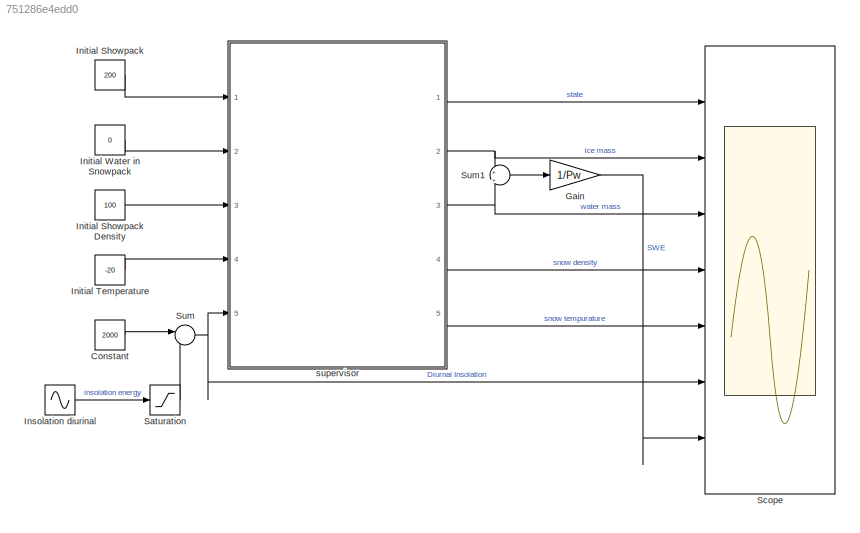
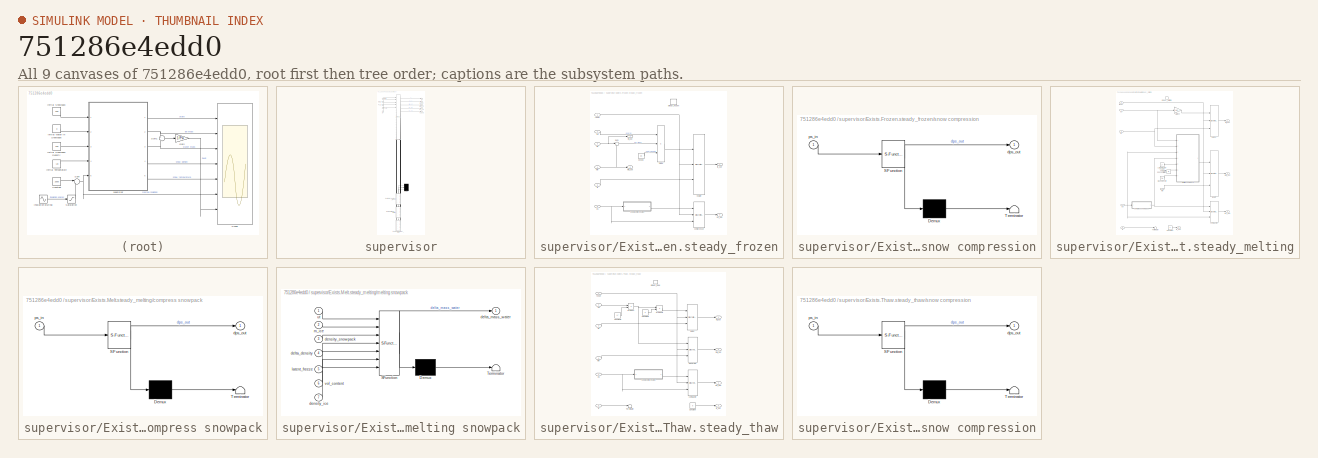
[diagram: thumbnail index - all 9 canvases of the model, root first then tree order]
MODEL slx_751286e4edd0
KIND model
WORKSPACE source: MAT-file member
WORKSPACE As = 450
BLOCK [Constant] Constant
  Value = 2000
BLOCK [Gain] Gain
  Gain = 1/Pw
  OutDataTypeStr = Inherit: Inherit via internal rule
  ParamDataTypeStr = Inherit: Inherit via internal rule
  SaturateOnIntegerOverflow = off
BLOCK [Constant] Initial Showpack
  Value = 200
BLOCK [Constant] Initial Showpack Density
  Value = 100
BLOCK [Constant] Initial Temperature
  Value = -20
BLOCK [Constant] Initial Water in Snowpack
  Value = 0
BLOCK [Sin] Insolation diurinal
  Amplitude = 30000
  Frequency = 2*pi
  Ports = [0, 1]
  SampleTime = 1/120
BLOCK [Saturate] Saturation
  InputPortMap = u0
  LowerLimit = 0.0
  Ports = [1, 1]
  UpperLimit = inf
BLOCK [Scope] Scope
  DataFormat = StructureWithTime
  Floating = off
  NumInputPorts = 7
  Ports = [7]
  SampleTime = 0
  ShowLegends = off
  YMax = 4~210~50~200~5~50000~0.3
  YMin = 0~0~0~-1~-25~-20000~0
BLOCK [Sum] Sum
  IconShape = round
  InputSameDT = off
  Inputs = |-+
  OutDataTypeStr = Inherit: Inherit via internal rule
  Ports = [2, 1]
  SaturateOnIntegerOverflow = off
BLOCK [Sum] Sum1
  IconShape = round
  InputSameDT = off
  Inputs = +|+
  OutDataTypeStr = Inherit: Inherit via internal rule
  Ports = [2, 1]
  SaturateOnIntegerOverflow = off
BLOCK [SubSystem] supervisor
  ErrorFcn = Stateflow.Translate.translate
  PermitHierarchicalResolution = ExplicitOnly
  Ports = [5, 5]
  RequestExecContextInheritance = off
  SFBlockType = Chart
  TreatAsAtomicUnit = on
BLOCK [Demux] supervisor/ Demux 
  Outputs = 3
  Ports = [1, 3]
BLOCK [S-Function] supervisor/ SFunction 
  EnableBusSupport = on
  FunctionName = sf_sfun
  PortCounts = [17 24]
  Ports = [17, 24]
  Tag = Stateflow S-Function snowpack_water 3
BLOCK [SubSystem] supervisor/Exists.Frozen.steady_frozen
  CheckFcnCallInpInsideContextMsg = on
  Ports = [6, 4, 0, 1]
  PreDeleteFcn = Stateflow.SLINSF.SimulinkMan.removePreDeleteFcn
  RequestExecContextInheritance = off
  UndoDeleteFcn = Stateflow.SLINSF.SimulinkMan.restorePreDeleteFcn
BLOCK [Constant] supervisor/Exists.Frozen.steady_frozen/C snow
  Value = Cs
BLOCK [Product] supervisor/Exists.Frozen.steady_frozen/Divide
  InputSameDT = off
  Inputs = *//
  OutDataTypeStr = Inherit: Inherit via internal rule
  Ports = [3, 1]
  RndMeth = Floor
  SaturateOnIntegerOverflow = off
BLOCK [Sum] supervisor/Exists.Frozen.steady_frozen/Sum
  IconShape = round
  InputSameDT = off
  Inputs = |++
  OutDataTypeStr = Inherit: Inherit via internal rule
  Ports = [2, 1]
  SaturateOnIntegerOverflow = off
BLOCK [DiscreteIntegrator] supervisor/Exists.Frozen.steady_frozen/compressor
  ExternalReset = rising
  ICPrevOutput = DiscIntNeverNeededParam
  ICPrevScaledInput = DiscIntNeverNeededParam
  InitialConditionSource = external
  Ports = [3, 1]
  SampleTime = -1
BLOCK [DiscreteIntegrator] supervisor/Exists.Frozen.steady_frozen/heater
  ExternalReset = rising
  ICPrevOutput = DiscIntNeverNeededParam
  ICPrevScaledInput = DiscIntNeverNeededParam
  InitialConditionSource = external
  Ports = [3, 1]
  SampleTime = -1
BLOCK [Inport] supervisor/Exists.Frozen.steady_frozen/mi
  IconDisplay = Port number
  OutDataTypeStr = double
  Port = 3
  PortDimensions = 1
  SignalType = real
  VarSizeSig = No
BLOCK [Outport] supervisor/Exists.Frozen.steady_frozen/mi_out
  IconDisplay = Port number
BLOCK [Inport] supervisor/Exists.Frozen.steady_frozen/mw
  IconDisplay = Port number
  OutDataTypeStr = double
  Port = 4
  PortDimensions = 1
  SignalType = real
  VarSizeSig = No
BLOCK [Outport] supervisor/Exists.Frozen.steady_frozen/mw_out
  IconDisplay = Port number
  Port = 2
BLOCK [Inport] supervisor/Exists.Frozen.steady_frozen/ps
  IconDisplay = Port number
  OutDataTypeStr = double
  Port = 5
  PortDimensions = 1
  SignalType = real
  VarSizeSig = No
BLOCK [Outport] supervisor/Exists.Frozen.steady_frozen/ps_out
  IconDisplay = Port number
  Port = 3
BLOCK [Inport] supervisor/Exists.Frozen.steady_frozen/reset
  IconDisplay = Port number
  OutDataTypeStr = double
  PortDimensions = 1
  SignalType = real
  VarSizeSig = No
BLOCK [SubSystem] supervisor/Exists.Frozen.steady_frozen/snow compression
  ErrorFcn = Stateflow.Translate.translate
  PermitHierarchicalResolution = ExplicitOnly
  Ports = [1, 1]
  RequestExecContextInheritance = off
  SFBlockType = MATLAB Function
  TreatAsAtomicUnit = on
BLOCK [Demux] supervisor/Exists.Frozen.steady_frozen/snow compression/ Demux 
  Outputs = 1
  Ports = [1, 1]
BLOCK [S-Function] supervisor/Exists.Frozen.steady_frozen/snow compression/ SFunction 
  EnableBusSupport = off
  FunctionName = sf_sfun
  PortCounts = [1 2]
  Ports = [1, 2]
  Tag = Stateflow S-Function snowpack_water 2
BLOCK [Terminator] supervisor/Exists.Frozen.steady_frozen/snow compression/ Terminator 
BLOCK [Outport] supervisor/Exists.Frozen.steady_frozen/snow compression/dps_out
  IconDisplay = Port number
BLOCK [Inport] supervisor/Exists.Frozen.steady_frozen/snow compression/ps_in
  IconDisplay = Port number
BLOCK [TriggerPort] supervisor/Exists.Frozen.steady_frozen/steady_frozen
  CopyFcn = Stateflow.SLINSF.SimulinkMan.removeBlockPreDeleteFcn
  Ports = []
  PreDeleteFcn = Stateflow.SLINSF.SimulinkMan.unsafePredeleteFcn
  StatesWhenEnabling = held
  TriggerType = function-call
BLOCK [Inport] supervisor/Exists.Frozen.steady_frozen/ts
  IconDisplay = Port number
  OutDataTypeStr = double
  Port = 6
  PortDimensions = 1
  SignalType = real
  VarSizeSig = No
BLOCK [Outport] supervisor/Exists.Frozen.steady_frozen/ts_out
  IconDisplay = Port number
  Port = 4
BLOCK [Inport] supervisor/Exists.Frozen.steady_frozen/uu
  IconDisplay = Port number
  OutDataTypeStr = double
  Port = 2
  PortDimensions = 1
  SignalType = real
  VarSizeSig = No
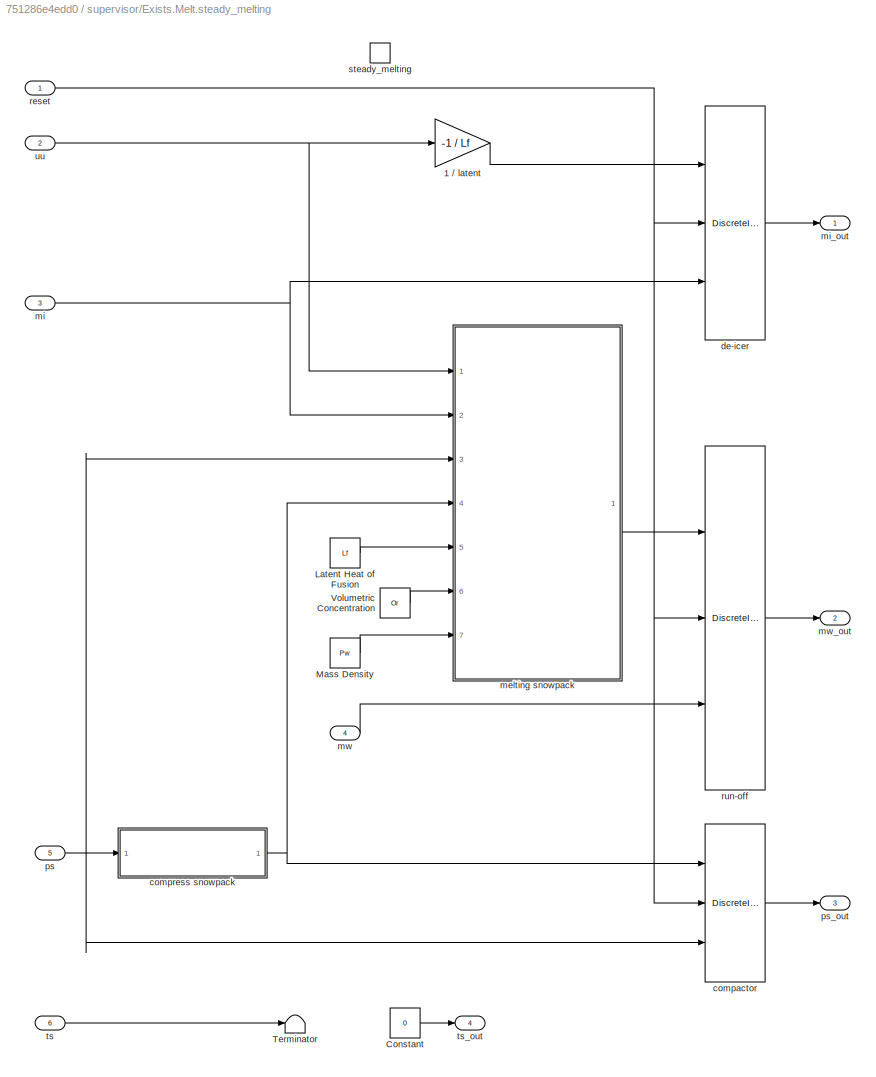
BLOCK [SubSystem] supervisor/Exists.Melt.steady_melting
  Ports = [6, 4, 0, 1]
  PreDeleteFcn = Stateflow.SLINSF.SimulinkMan.removePreDeleteFcn
  RequestExecContextInheritance = off
  UndoDeleteFcn = Stateflow.SLINSF.SimulinkMan.restorePreDeleteFcn
BLOCK [Gain] supervisor/Exists.Melt.steady_melting/1 // latent
  Gain = -1 / Lf
  OutDataTypeStr = Inherit: Inherit via internal rule
  ParamDataTypeStr = Inherit: Inherit via internal rule
  SaturateOnIntegerOverflow = off
BLOCK [Constant] supervisor/Exists.Melt.steady_melting/Constant
  Value = 0
BLOCK [Constant] supervisor/Exists.Melt.steady_melting/Latent Heat of Fusion
  Value = Lf
BLOCK [Constant] supervisor/Exists.Melt.steady_melting/Mass Density
  Value = Pw
BLOCK [Terminator] supervisor/Exists.Melt.steady_melting/Terminator
BLOCK [Constant] supervisor/Exists.Melt.steady_melting/Volumetric Concentration
  Value = Or
BLOCK [DiscreteIntegrator] supervisor/Exists.Melt.steady_melting/compactor
  ExternalReset = rising
  ICPrevOutput = DiscIntNeverNeededParam
  ICPrevScaledInput = DiscIntNeverNeededParam
  InitialConditionSource = external
  Ports = [3, 1]
  SampleTime = -1
BLOCK [SubSystem] supervisor/Exists.Melt.steady_melting/compress snowpack
  ErrorFcn = Stateflow.Translate.translate
  PermitHierarchicalResolution = ExplicitOnly
  Ports = [1, 1]
  RequestExecContextInheritance = off
  SFBlockType = MATLAB Function
  TreatAsAtomicUnit = on
BLOCK [Demux] supervisor/Exists.Melt.steady_melting/compress snowpack/ Demux 
  Outputs = 1
  Ports = [1, 1]
BLOCK [S-Function] supervisor/Exists.Melt.steady_melting/compress snowpack/ SFunction 
  EnableBusSupport = off
  FunctionName = sf_sfun
  PortCounts = [1 2]
  Ports = [1, 2]
  Tag = Stateflow S-Function snowpack_water 1
BLOCK [Terminator] supervisor/Exists.Melt.steady_melting/compress snowpack/ Terminator 
BLOCK [Outport] supervisor/Exists.Melt.steady_melting/compress snowpack/dps_out
  IconDisplay = Port number
BLOCK [Inport] supervisor/Exists.Melt.steady_melting/compress snowpack/ps_in
  IconDisplay = Port number
BLOCK [DiscreteIntegrator] supervisor/Exists.Melt.steady_melting/de-icer
  ExternalReset = rising
  ICPrevOutput = DiscIntNeverNeededParam
  ICPrevScaledInput = DiscIntNeverNeededParam
  InitialConditionSource = external
  Ports = [3, 1]
  SampleTime = -1
BLOCK [SubSystem] supervisor/Exists.Melt.steady_melting/melting snowpack
  ErrorFcn = Stateflow.Translate.translate
  PermitHierarchicalResolution = ExplicitOnly
  Ports = [7, 1]
  RequestExecContextInheritance = off
  SFBlockType = MATLAB Function
  TreatAsAtomicUnit = on
BLOCK [Demux] supervisor/Exists.Melt.steady_melting/melting snowpack/ Demux 
  Outputs = 1
  Ports = [1, 1]
BLOCK [S-Function] supervisor/Exists.Melt.steady_melting/melting snowpack/ SFunction 
  EnableBusSupport = off
  FunctionName = sf_sfun
  PortCounts = [7 2]
  Ports = [7, 2]
  Tag = Stateflow S-Function snowpack_water 5
BLOCK [Terminator] supervisor/Exists.Melt.steady_melting/melting snowpack/ Terminator 
BLOCK [Inport] supervisor/Exists.Melt.steady_melting/melting snowpack/delta_density
  IconDisplay = Port number
  Port = 4
BLOCK [Outport] supervisor/Exists.Melt.steady_melting/melting snowpack/delta_mass_water
  IconDisplay = Port number
BLOCK [Inport] supervisor/Exists.Melt.steady_melting/melting snowpack/density_ice
  IconDisplay = Port number
  Port = 7
BLOCK [Inport] supervisor/Exists.Melt.steady_melting/melting snowpack/density_snowpack
  IconDisplay = Port number
  Port = 3
BLOCK [Inport] supervisor/Exists.Melt.steady_melting/melting snowpack/latent_freeze
  IconDisplay = Port number
  Port = 5
BLOCK [Inport] supervisor/Exists.Melt.steady_melting/melting snowpack/m_ice
  IconDisplay = Port number
  Port = 2
BLOCK [Inport] supervisor/Exists.Melt.steady_melting/melting snowpack/ut
  IconDisplay = Port number
BLOCK [Inport] supervisor/Exists.Melt.steady_melting/melting snowpack/vol_content
  IconDisplay = Port number
  Port = 6
BLOCK [Inport] supervisor/Exists.Melt.steady_melting/mi
  IconDisplay = Port number
  OutDataTypeStr = double
  Port = 3
  PortDimensions = 1
  SignalType = real
  VarSizeSig = No
BLOCK [Outport] supervisor/Exists.Melt.steady_melting/mi_out
  IconDisplay = Port number
BLOCK [Inport] supervisor/Exists.Melt.steady_melting/mw
  IconDisplay = Port number
  OutDataTypeStr = double
  Port = 4
  PortDimensions = 1
  SignalType = real
  VarSizeSig = No
BLOCK [Outport] supervisor/Exists.Melt.steady_melting/mw_out
  IconDisplay = Port number
  Port = 2
BLOCK [Inport] supervisor/Exists.Melt.steady_melting/ps
  IconDisplay = Port number
  OutDataTypeStr = double
  Port = 5
  PortDimensions = 1
  SignalType = real
  VarSizeSig = No
BLOCK [Outport] supervisor/Exists.Melt.steady_melting/ps_out
  IconDisplay = Port number
  Port = 3
BLOCK [Inport] supervisor/Exists.Melt.steady_melting/reset
  IconDisplay = Port number
  OutDataTypeStr = double
  PortDimensions = 1
  SignalType = real
  VarSizeSig = No
BLOCK [DiscreteIntegrator] supervisor/Exists.Melt.steady_melting/run-off
  ExternalReset = rising
  ICPrevOutput = DiscIntNeverNeededParam
  ICPrevScaledInput = DiscIntNeverNeededParam
  InitialConditionSource = external
  Ports = [3, 1]
  SampleTime = -1
BLOCK [TriggerPort] supervisor/Exists.Melt.steady_melting/steady_melting
  CopyFcn = Stateflow.SLINSF.SimulinkMan.removeBlockPreDeleteFcn
  Ports = []
  PreDeleteFcn = Stateflow.SLINSF.SimulinkMan.unsafePredeleteFcn
  StatesWhenEnabling = held
  TriggerType = function-call
BLOCK [Inport] supervisor/Exists.Melt.steady_melting/ts
  IconDisplay = Port number
  OutDataTypeStr = double
  Port = 6
  PortDimensions = 1
  SignalType = real
  VarSizeSig = No
BLOCK [Outport] supervisor/Exists.Melt.steady_melting/ts_out
  IconDisplay = Port number
  Port = 4
BLOCK [Inport] supervisor/Exists.Melt.steady_melting/uu
  IconDisplay = Port number
  OutDataTypeStr = double
  Port = 2
  PortDimensions = 1
  SignalType = real
  VarSizeSig = No
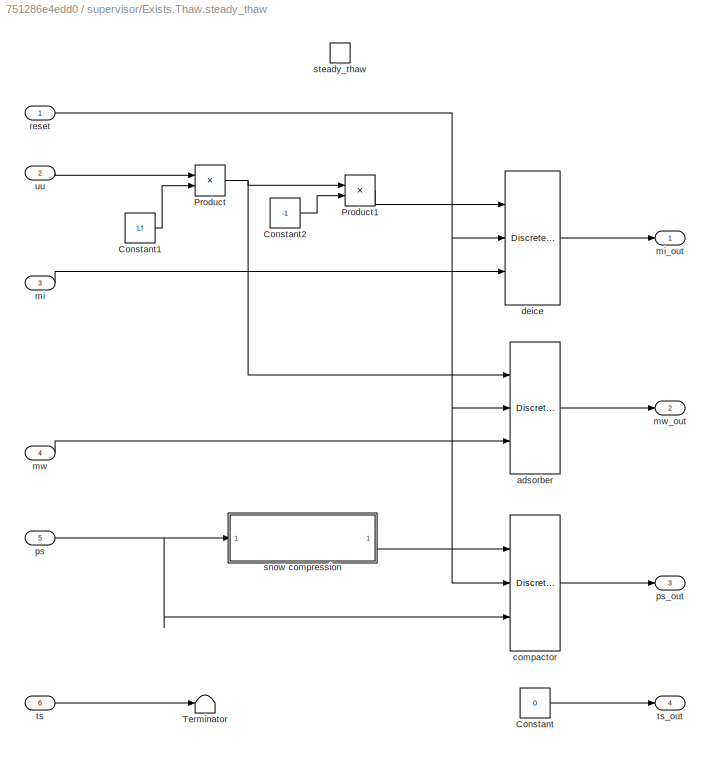
BLOCK [SubSystem] supervisor/Exists.Thaw.steady_thaw
  Ports = [6, 4, 0, 1]
  PreDeleteFcn = Stateflow.SLINSF.SimulinkMan.removePreDeleteFcn
  RequestExecContextInheritance = off
  UndoDeleteFcn = Stateflow.SLINSF.SimulinkMan.restorePreDeleteFcn
BLOCK [Constant] supervisor/Exists.Thaw.steady_thaw/Constant
  Value = 0
BLOCK [Constant] supervisor/Exists.Thaw.steady_thaw/Constant1
  Value = Lf
BLOCK [Constant] supervisor/Exists.Thaw.steady_thaw/Constant2
  Value = -1
BLOCK [Product] supervisor/Exists.Thaw.steady_thaw/Product
  InputSameDT = off
  Inputs = */
  OutDataTypeStr = Inherit: Inherit via internal rule
  Ports = [2, 1]
  RndMeth = Floor
  SaturateOnIntegerOverflow = off
BLOCK [Product] supervisor/Exists.Thaw.steady_thaw/Product1
  InputSameDT = off
  Inputs = **
  OutDataTypeStr = Inherit: Inherit via internal rule
  Ports = [2, 1]
  RndMeth = Floor
  SaturateOnIntegerOverflow = off
BLOCK [Terminator] supervisor/Exists.Thaw.steady_thaw/Terminator
BLOCK [DiscreteIntegrator] supervisor/Exists.Thaw.steady_thaw/adsorber
  ExternalReset = rising
  ICPrevOutput = DiscIntNeverNeededParam
  ICPrevScaledInput = DiscIntNeverNeededParam
  InitialConditionSource = external
  Ports = [3, 1]
  SampleTime = -1
BLOCK [DiscreteIntegrator] supervisor/Exists.Thaw.steady_thaw/compactor
  ExternalReset = rising
  ICPrevOutput = DiscIntNeverNeededParam
  ICPrevScaledInput = DiscIntNeverNeededParam
  InitialConditionSource = external
  Ports = [3, 1]
  SampleTime = -1
BLOCK [DiscreteIntegrator] supervisor/Exists.Thaw.steady_thaw/deice
  ExternalReset = rising
  ICPrevOutput = DiscIntNeverNeededParam
  ICPrevScaledInput = DiscIntNeverNeededParam
  InitialConditionSource = external
  Ports = [3, 1]
  SampleTime = -1
BLOCK [Inport] supervisor/Exists.Thaw.steady_thaw/mi
  IconDisplay = Port number
  OutDataTypeStr = double
  Port = 3
  PortDimensions = 1
  SignalType = real
  VarSizeSig = No
BLOCK [Outport] supervisor/Exists.Thaw.steady_thaw/mi_out
  IconDisplay = Port number
BLOCK [Inport] supervisor/Exists.Thaw.steady_thaw/mw
  IconDisplay = Port number
  OutDataTypeStr = double
  Port = 4
  PortDimensions = 1
  SignalType = real
  VarSizeSig = No
BLOCK [Outport] supervisor/Exists.Thaw.steady_thaw/mw_out
  IconDisplay = Port number
  Port = 2
BLOCK [Inport] supervisor/Exists.Thaw.steady_thaw/ps
  IconDisplay = Port number
  OutDataTypeStr = double
  Port = 5
  PortDimensions = 1
  SignalType = real
  VarSizeSig = No
BLOCK [Outport] supervisor/Exists.Thaw.steady_thaw/ps_out
  IconDisplay = Port number
  Port = 3
BLOCK [Inport] supervisor/Exists.Thaw.steady_thaw/reset
  IconDisplay = Port number
  OutDataTypeStr = double
  PortDimensions = 1
  SignalType = real
  VarSizeSig = No
BLOCK [SubSystem] supervisor/Exists.Thaw.steady_thaw/snow compression
  ErrorFcn = Stateflow.Translate.translate
  PermitHierarchicalResolution = ExplicitOnly
  Ports = [1, 1]
  RequestExecContextInheritance = off
  SFBlockType = MATLAB Function
  TreatAsAtomicUnit = on
BLOCK [Demux] supervisor/Exists.Thaw.steady_thaw/snow compression/ Demux 
  Outputs = 1
  Ports = [1, 1]
BLOCK [S-Function] supervisor/Exists.Thaw.steady_thaw/snow compression/ SFunction 
  EnableBusSupport = off
  FunctionName = sf_sfun
  PortCounts = [1 2]
  Ports = [1, 2]
  Tag = Stateflow S-Function snowpack_water 4
BLOCK [Terminator] supervisor/Exists.Thaw.steady_thaw/snow compression/ Terminator 
BLOCK [Outport] supervisor/Exists.Thaw.steady_thaw/snow compression/dps_out
  IconDisplay = Port number
BLOCK [Inport] supervisor/Exists.Thaw.steady_thaw/snow compression/ps_in
  IconDisplay = Port number
BLOCK [TriggerPort] supervisor/Exists.Thaw.steady_thaw/steady_thaw
  CopyFcn = Stateflow.SLINSF.SimulinkMan.removeBlockPreDeleteFcn
  Ports = []
  PreDeleteFcn = Stateflow.SLINSF.SimulinkMan.unsafePredeleteFcn
  StatesWhenEnabling = held
  TriggerType = function-call
BLOCK [Inport] supervisor/Exists.Thaw.steady_thaw/ts
  IconDisplay = Port number
  OutDataTypeStr = double
  Port = 6
  PortDimensions = 1
  SignalType = real
  VarSizeSig = No
BLOCK [Outport] supervisor/Exists.Thaw.steady_thaw/ts_out
  IconDisplay = Port number
  Port = 4
BLOCK [Inport] supervisor/Exists.Thaw.steady_thaw/uu
  IconDisplay = Port number
  OutDataTypeStr = double
  Port = 2
  PortDimensions = 1
  SignalType = real
  VarSizeSig = No
BLOCK [Inport] supervisor/Mi_in
  IconDisplay = Port number
BLOCK [Outport] supervisor/Mi_out
  IconDisplay = Port number
  Port = 2
BLOCK [Inport] supervisor/Mw_in
  IconDisplay = Port number
  Port = 2
BLOCK [Outport] supervisor/Mw_out
  IconDisplay = Port number
  Port = 3
BLOCK [Inport] supervisor/Ps_in
  IconDisplay = Port number
  Port = 3
BLOCK [Outport] supervisor/Ps_out
  IconDisplay = Port number
  Port = 4
BLOCK [Inport] supervisor/Ts_in
  IconDisplay = Port number
  Port = 4
BLOCK [Outport] supervisor/Ts_out
  IconDisplay = Port number
  Port = 5
BLOCK [Outport] supervisor/q
  IconDisplay = Port number
BLOCK [Inport] supervisor/ut
  IconDisplay = Port number
  Port = 5
LINE Constant:1 -> Sum:1
LINE Gain:1 -> Scope:7
LINE Initial Showpack Density:1 -> supervisor:3
LINE Initial Showpack:1 -> supervisor:1
LINE Initial Temperature:1 -> supervisor:4
LINE Initial Water in Snowpack:1 -> supervisor:2
LINE Insolation diurinal:1 -> Saturation:1
LINE Saturation:1 -> Sum:2
LINE Sum1:1 -> Gain:1
NET Sum:1 -> Scope:6, supervisor:5
LINE supervisor:1 -> Scope:1
NET supervisor:2 -> Scope:2, Sum1:1
NET supervisor:3 -> Scope:3, Sum1:2
LINE supervisor:4 -> Scope:4
LINE supervisor:5 -> Scope:5
note: NET lines group one-source signal fan-out (src -> all destinations, sorted); 1:1 wires keep LINE
